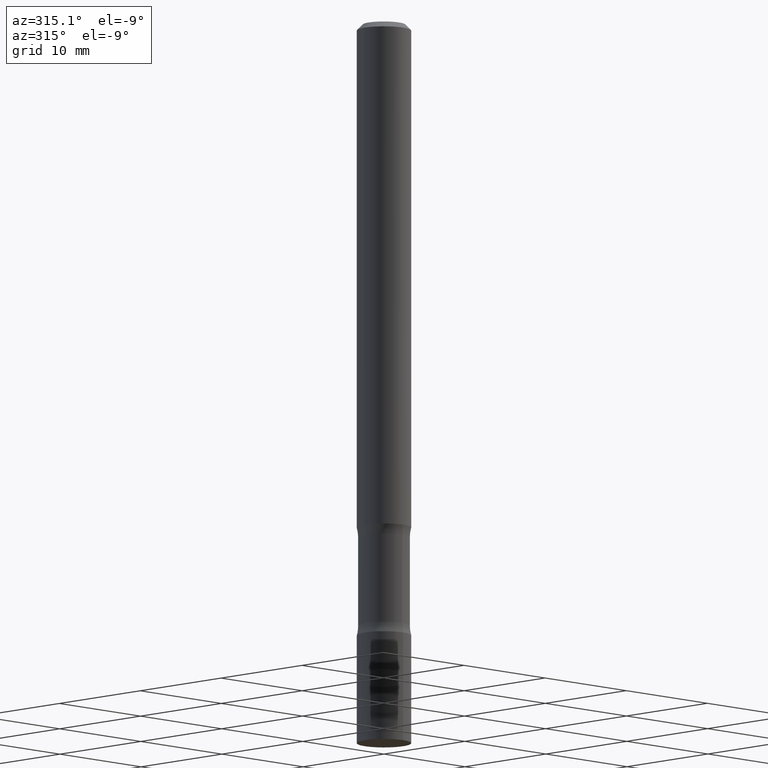
[diagram: clean part render]
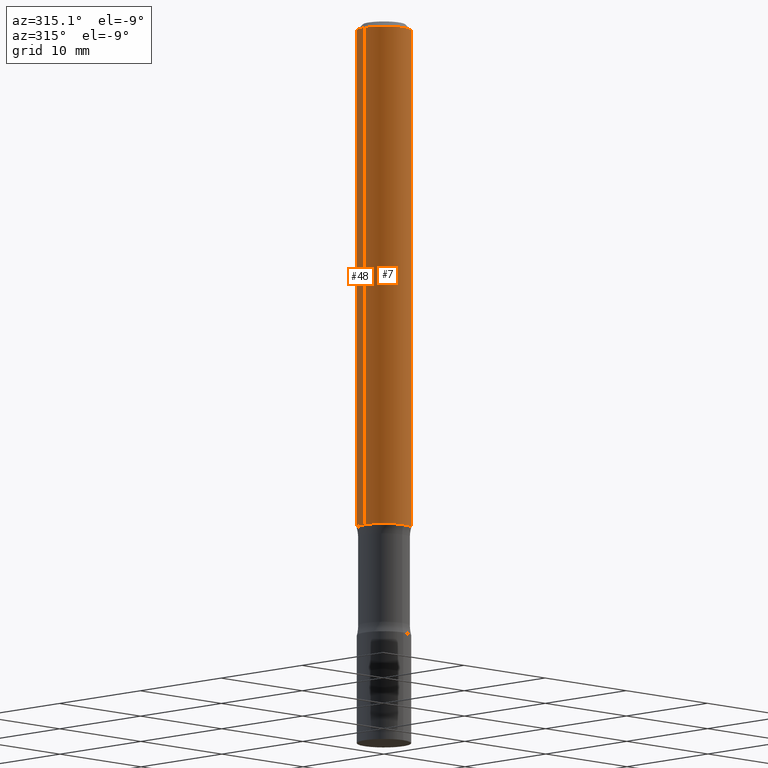
[diagram: same view with one multi-face feature highlighted, each face labeled with its STEP entity id]
A machine part, auxiliary view. The highlighted faces form ONE feature: a constant-radius fillet chain: 2 tangent blend faces with common blend radius 2.3812 mm. The faces share edges in the B-rep.
Their STEP definitions:
[1] entity #7 (Cylinder):
#7 = ADVANCED_FACE ( 'NONE', ( #165 ), #459, .T. ) ;
#20 = ORIENTED_EDGE ( 'NONE', *, *, #394, .T. ) ;
#41 = EDGE_CURVE ( 'NONE', #150, #406, #352, .T. ) ;
#52 = CARTESIAN_POINT ( 'NONE',  ( 4.890937612370273159E-31, -6.982962677686291609E-17, -0.02000000000000000042 ) ) ;
#60 = EDGE_LOOP ( 'NONE', ( #221, #299, #20, #450 ) ) ;
#69 = AXIS2_PLACEMENT_3D ( 'NONE', #343, #456, #346 ) ;
#89 = LINE ( 'NONE', #432, #389 ) ;
#99 = EDGE_CURVE ( 'NONE', #160, #258, #410, .T. ) ;
#109 = CARTESIAN_POINT ( 'NONE',  ( -0.09375000000000001388, -2.423827170101085722E-15, -1.750000000000000000 ) ) ;
#141 = AXIS2_PLACEMENT_3D ( 'NONE', #52, #321, #246 ) ;
#142 = CARTESIAN_POINT ( 'NONE',  ( -0.09374999999999979183, 5.848231242562231212E-16, -0.02000000000000000042 ) ) ;
#150 = VERTEX_POINT ( 'NONE', #142 ) ;
#159 = AXIS2_PLACEMENT_3D ( 'NONE', #178, #388, #398 ) ;
#160 = VERTEX_POINT ( 'NONE', #109 ) ;
#165 = FACE_OUTER_BOUND ( 'NONE', #60, .T. ) ;
#178 = CARTESIAN_POINT ( 'NONE',  ( 4.279570410823988484E-29, -6.110092342975504671E-15, -1.750000000000000000 ) ) ;
#221 = ORIENTED_EDGE ( 'NONE', *, *, #391, .F. ) ;
#246 = DIRECTION ( 'NONE',  ( 1.000000000000000000, -6.982962677686266711E-15, 0.000000000000000000 ) ) ;
#258 = VERTEX_POINT ( 'NONE', #495 ) ;
#275 = CARTESIAN_POINT ( 'NONE',  ( 0.09374999999999979183, -7.130013140679426072E-16, -0.02000000000000000042 ) ) ;
#299 = ORIENTED_EDGE ( 'NONE', *, *, #99, .T. ) ;
#309 = DIRECTION ( 'NONE',  ( -2.445468806185136877E-29, 3.491481338843145188E-15, 1.000000000000000000 ) ) ;
#315 = DIRECTION ( 'NONE',  ( -2.445468806185136877E-29, 3.491481338843145188E-15, 1.000000000000000000 ) ) ;
#321 = DIRECTION ( 'NONE',  ( -2.445468806185136597E-29, 3.491481338843145583E-15, 1.000000000000000000 ) ) ;
#343 = CARTESIAN_POINT ( 'NONE',  ( 0.000000000000000000, 0.000000000000000000, 0.000000000000000000 ) ) ;
#346 = DIRECTION ( 'NONE',  ( 1.000000000000000000, -6.982962677686265133E-15, 4.876176775795935793E-29 ) ) ;
#352 = CIRCLE ( 'NONE', #141, 0.09374999999999979183 ) ;
#388 = DIRECTION ( 'NONE',  ( -2.445468806185136597E-29, 3.491481338843145583E-15, 1.000000000000000000 ) ) ;
#389 = VECTOR ( 'NONE', #315, 39.37007874015748143 ) ;
#391 = EDGE_CURVE ( 'NONE', #160, #150, #504, .T. ) ;
#394 = EDGE_CURVE ( 'NONE', #258, #406, #89, .T. ) ;
#398 = DIRECTION ( 'NONE',  ( 1.000000000000000000, -6.982962677686261189E-15, 0.000000000000000000 ) ) ;
#406 = VERTEX_POINT ( 'NONE', #275 ) ;
#410 = CIRCLE ( 'NONE', #159, 0.09375000000000001388 ) ;
#432 = CARTESIAN_POINT ( 'NONE',  ( 0.09374999999999988898, -6.546527510330866166E-16, 4.571415727308684201E-30 ) ) ;
#450 = ORIENTED_EDGE ( 'NONE', *, *, #41, .F. ) ;
#456 = DIRECTION ( 'NONE',  ( -2.445468806185136597E-29, 3.491481338843145583E-15, 1.000000000000000000 ) ) ;
#459 = CYLINDRICAL_SURFACE ( 'NONE', #69, 0.09374999999999988898 ) ;
#467 = VECTOR ( 'NONE', #309, 39.37007874015748143 ) ;
#471 = CARTESIAN_POINT ( 'NONE',  ( -0.09374999999999988898, 6.661338147750931354E-16, -4.611501647113968390E-30 ) ) ;
#495 = CARTESIAN_POINT ( 'NONE',  ( 0.09375000000000001388, -6.764745094008591386E-15, -1.750000000000000000 ) ) ;
#504 = LINE ( 'NONE', #471, #467 ) ;
[2] entity #48 (Cylinder):
#10 = CARTESIAN_POINT ( 'NONE',  ( 0.000000000000000000, 0.000000000000000000, 0.000000000000000000 ) ) ;
#48 = ADVANCED_FACE ( 'NONE', ( #170 ), #85, .T. ) ;
#66 = EDGE_LOOP ( 'NONE', ( #430, #162, #68, #106 ) ) ;
#68 = ORIENTED_EDGE ( 'NONE', *, *, #78, .F. ) ;
#78 = EDGE_CURVE ( 'NONE', #406, #150, #129, .T. ) ;
#85 = CYLINDRICAL_SURFACE ( 'NONE', #342, 0.09374999999999988898 ) ;
#89 = LINE ( 'NONE', #432, #389 ) ;
#106 = ORIENTED_EDGE ( 'NONE', *, *, #394, .F. ) ;
#109 = CARTESIAN_POINT ( 'NONE',  ( -0.09375000000000001388, -2.423827170101085722E-15, -1.750000000000000000 ) ) ;
#129 = CIRCLE ( 'NONE', #482, 0.09374999999999979183 ) ;
#142 = CARTESIAN_POINT ( 'NONE',  ( -0.09374999999999979183, 5.848231242562231212E-16, -0.02000000000000000042 ) ) ;
#150 = VERTEX_POINT ( 'NONE', #142 ) ;
#152 = EDGE_CURVE ( 'NONE', #258, #160, #363, .T. ) ;
#160 = VERTEX_POINT ( 'NONE', #109 ) ;
#162 = ORIENTED_EDGE ( 'NONE', *, *, #391, .T. ) ;
#170 = FACE_OUTER_BOUND ( 'NONE', #66, .T. ) ;
#214 = DIRECTION ( 'NONE',  ( 1.000000000000000000, -6.982962677686265133E-15, 4.876176775795935793E-29 ) ) ;
#258 = VERTEX_POINT ( 'NONE', #495 ) ;
#275 = CARTESIAN_POINT ( 'NONE',  ( 0.09374999999999979183, -7.130013140679426072E-16, -0.02000000000000000042 ) ) ;
#278 = DIRECTION ( 'NONE',  ( 1.000000000000000000, -6.982962677686266711E-15, 0.000000000000000000 ) ) ;
#309 = DIRECTION ( 'NONE',  ( -2.445468806185136877E-29, 3.491481338843145188E-15, 1.000000000000000000 ) ) ;
#315 = DIRECTION ( 'NONE',  ( -2.445468806185136877E-29, 3.491481338843145188E-15, 1.000000000000000000 ) ) ;
#336 = AXIS2_PLACEMENT_3D ( 'NONE', #405, #367, #378 ) ;
#342 = AXIS2_PLACEMENT_3D ( 'NONE', #10, #436, #214 ) ;
#351 = DIRECTION ( 'NONE',  ( -2.445468806185136597E-29, 3.491481338843145583E-15, 1.000000000000000000 ) ) ;
#363 = CIRCLE ( 'NONE', #336, 0.09375000000000001388 ) ;
#367 = DIRECTION ( 'NONE',  ( -2.445468806185136597E-29, 3.491481338843145583E-15, 1.000000000000000000 ) ) ;
#378 = DIRECTION ( 'NONE',  ( 1.000000000000000000, -6.982962677686261189E-15, 0.000000000000000000 ) ) ;
#389 = VECTOR ( 'NONE', #315, 39.37007874015748143 ) ;
#391 = EDGE_CURVE ( 'NONE', #160, #150, #504, .T. ) ;
#394 = EDGE_CURVE ( 'NONE', #258, #406, #89, .T. ) ;
#405 = CARTESIAN_POINT ( 'NONE',  ( 4.279570410823988484E-29, -6.110092342975504671E-15, -1.750000000000000000 ) ) ;
#406 = VERTEX_POINT ( 'NONE', #275 ) ;
#430 = ORIENTED_EDGE ( 'NONE', *, *, #152, .T. ) ;
#432 = CARTESIAN_POINT ( 'NONE',  ( 0.09374999999999988898, -6.546527510330866166E-16, 4.571415727308684201E-30 ) ) ;
#434 = CARTESIAN_POINT ( 'NONE',  ( 4.890937612370273159E-31, -6.982962677686291609E-17, -0.02000000000000000042 ) ) ;
#436 = DIRECTION ( 'NONE',  ( -2.445468806185136597E-29, 3.491481338843145583E-15, 1.000000000000000000 ) ) ;
#467 = VECTOR ( 'NONE', #309, 39.37007874015748143 ) ;
#471 = CARTESIAN_POINT ( 'NONE',  ( -0.09374999999999988898, 6.661338147750931354E-16, -4.611501647113968390E-30 ) ) ;
#482 = AXIS2_PLACEMENT_3D ( 'NONE', #434, #351, #278 ) ;
#495 = CARTESIAN_POINT ( 'NONE',  ( 0.09375000000000001388, -6.764745094008591386E-15, -1.750000000000000000 ) ) ;
#504 = LINE ( 'NONE', #471, #467 ) ;